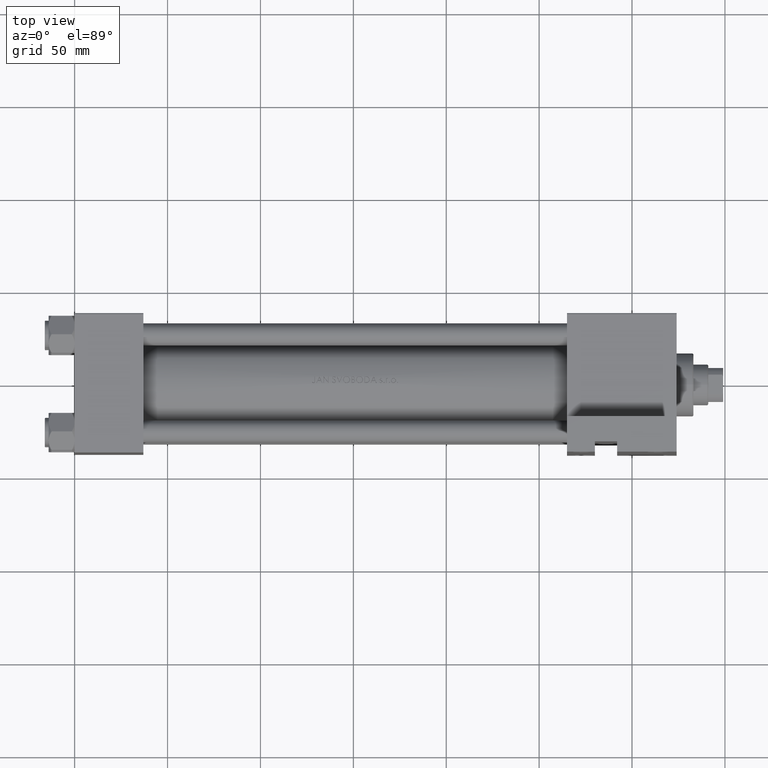
[diagram: clean part render]
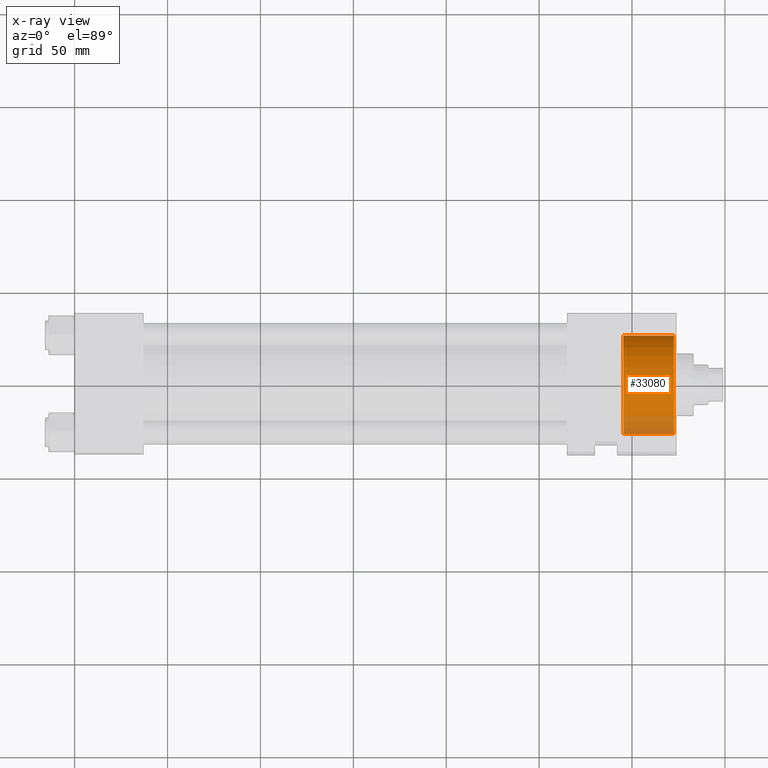
[diagram: x-ray — body ghosted, one internal face saturated and labeled with its STEP entity id]
A machine part, top view, then the same camera in x-ray: the body is ghosted and one INTERNAL B-rep face — a face not visible from any outside direction — is saturated and labeled: STEP entity #33080.
In plain terms, the highlighted cylindrical surface (partial cylindrical patch) has radius 26.5 mm, axis along (1, 0, 0).
Its self-contained STEP definition (entity closure, byte-faithful):
#219 = CARTESIAN_POINT ( 'NONE',  ( 322.4999999999999432, 0.000000000000000000, -0.5000000000000004441 ) ) ;
#1135 = VERTEX_POINT ( 'NONE', #15136 ) ;
#1620 = DIRECTION ( 'NONE',  ( 1.000000000000000000, -0.000000000000000000, -0.000000000000000000 ) ) ;
#1893 = DIRECTION ( 'NONE',  ( 0.000000000000000000, 0.000000000000000000, -1.000000000000000000 ) ) ;
#2792 = CIRCLE ( 'NONE', #15058, 26.50000000000000355 ) ;
#4518 = DIRECTION ( 'NONE',  ( 0.000000000000000000, 0.000000000000000000, -1.000000000000000000 ) ) ;
#5531 = ORIENTED_EDGE ( 'NONE', *, *, #27907, .T. ) ;
#5875 = CIRCLE ( 'NONE', #43542, 26.50000000000000355 ) ;
#6671 = AXIS2_PLACEMENT_3D ( 'NONE', #41628, #16327, #1893 ) ;
#7066 = ORIENTED_EDGE ( 'NONE', *, *, #26988, .F. ) ;
#8118 = DIRECTION ( 'NONE',  ( 1.000000000000000000, 0.000000000000000000, 0.000000000000000000 ) ) ;
#12560 = ORIENTED_EDGE ( 'NONE', *, *, #31625, .F. ) ;
#15058 = AXIS2_PLACEMENT_3D ( 'NONE', #219, #29544, #34803 ) ;
#15136 = CARTESIAN_POINT ( 'NONE',  ( 295.3000000000000114, 0.000000000000000000, -27.00000000000000355 ) ) ;
#16327 = DIRECTION ( 'NONE',  ( 1.000000000000000000, -0.000000000000000000, -0.000000000000000000 ) ) ;
#17829 = VERTEX_POINT ( 'NONE', #37705 ) ;
#19588 = CARTESIAN_POINT ( 'NONE',  ( 295.3000000000000114, 3.245314017740486554E-15, 26.00000000000000355 ) ) ;
#24261 = VECTOR ( 'NONE', #1620, 1000.000000000000000 ) ;
#26432 = LINE ( 'NONE', #33193, #43937 ) ;
#26616 = CARTESIAN_POINT ( 'NONE',  ( 295.3000000000000114, 0.000000000000000000, -0.5000000000000004441 ) ) ;
#26988 = EDGE_CURVE ( 'NONE', #1135, #44522, #30470, .T. ) ;
#27907 = EDGE_CURVE ( 'NONE', #17829, #44522, #2792, .T. ) ;
#29544 = DIRECTION ( 'NONE',  ( 1.000000000000000000, 0.000000000000000000, 0.000000000000000000 ) ) ;
#30470 = LINE ( 'NONE', #38183, #24261 ) ;
#30516 = FACE_OUTER_BOUND ( 'NONE', #47150, .T. ) ;
#31625 = EDGE_CURVE ( 'NONE', #35573, #1135, #5875, .T. ) ;
#33080 = ADVANCED_FACE ( 'NONE', ( #30516 ), #37991, .F. ) ;
#33193 = CARTESIAN_POINT ( 'NONE',  ( 295.3000000000000114, 3.245314017740486554E-15, 26.00000000000000355 ) ) ;
#34803 = DIRECTION ( 'NONE',  ( 0.000000000000000000, 0.000000000000000000, 1.000000000000000000 ) ) ;
#34850 = CARTESIAN_POINT ( 'NONE',  ( 322.4999999999999432, 0.000000000000000000, -27.00000000000000355 ) ) ;
#35114 = ORIENTED_EDGE ( 'NONE', *, *, #43562, .T. ) ;
#35573 = VERTEX_POINT ( 'NONE', #19588 ) ;
#37705 = CARTESIAN_POINT ( 'NONE',  ( 322.4999999999999432, 3.245314017740486554E-15, 26.00000000000000355 ) ) ;
#37991 = CYLINDRICAL_SURFACE ( 'NONE', #6671, 26.50000000000000355 ) ;
#38183 = CARTESIAN_POINT ( 'NONE',  ( 295.3000000000000114, 0.000000000000000000, -27.00000000000000355 ) ) ;
#41151 = DIRECTION ( 'NONE',  ( 1.000000000000000000, -0.000000000000000000, -0.000000000000000000 ) ) ;
#41628 = CARTESIAN_POINT ( 'NONE',  ( 295.3000000000000114, 0.000000000000000000, -0.5000000000000004441 ) ) ;
#43542 = AXIS2_PLACEMENT_3D ( 'NONE', #26616, #8118, #4518 ) ;
#43562 = EDGE_CURVE ( 'NONE', #35573, #17829, #26432, .T. ) ;
#43937 = VECTOR ( 'NONE', #41151, 1000.000000000000000 ) ;
#44522 = VERTEX_POINT ( 'NONE', #34850 ) ;
#47150 = EDGE_LOOP ( 'NONE', ( #12560, #35114, #5531, #7066 ) ) ;